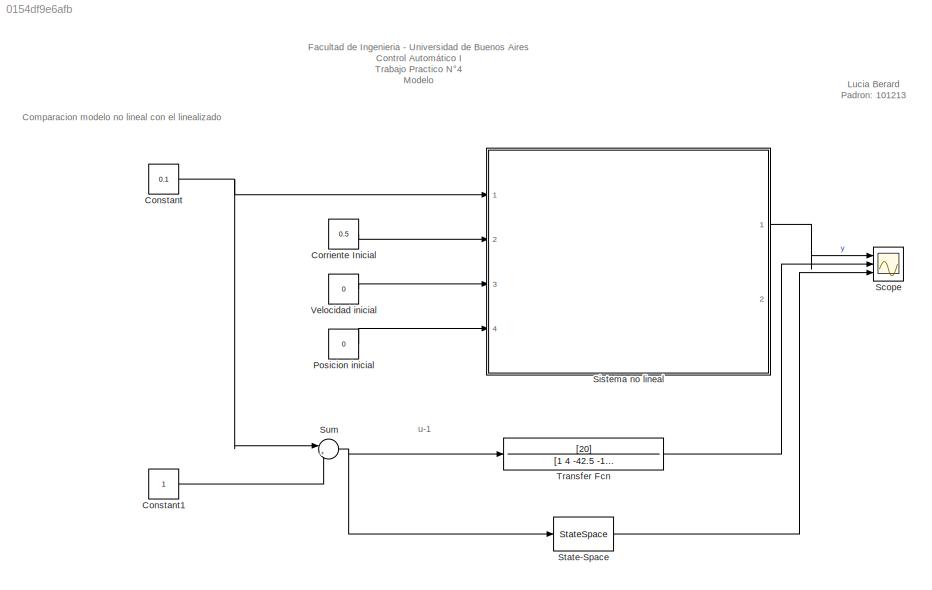
MODEL slx_0154df9e6afb
KIND model
CONFIG AbsTol = auto
CONFIG EnableMultiTasking = on
CONFIG FixedStep = 0.001
CONFIG MaxStep = auto
CONFIG MinStep = auto
CONFIG RelTol = 1e-3
CONFIG SampleTimeConstraint = Unconstrained
CONFIG Solver = ode4
CONFIG SolverName = ode4
CONFIG StartTime = 0.0
CONFIG StopTime = 0.6
BLOCK [Constant] Constant
  Value = 0.1
BLOCK [Constant] Constant1
BLOCK [Constant] Corriente Inicial
  Value = 0.5
BLOCK [Constant] Posicion inicial
  Value = 0
BLOCK [Scope] Scope
  Floating = off
  NumInputPorts = 3
  Ports = [3]
  ScopeSpecificationString = Simulink.scopes.TimeScopeBlockCfg('CurrentConfiguration', extmgr.ConfigurationSet(extmgr.Configuration('Core','General UI',true,'FigureColor',[0.831372549019608 0.815686274509804 0.784313725490196]),extmgr.Configuration('Core','Source UI',true),extmgr.Configuration('Sources','WiredSimulink',true),extmgr.Configuration('Visuals','Time Domain',true,'SerializedDisplays',{struct('MinYLimReal','-1','Max...<+1900ch>
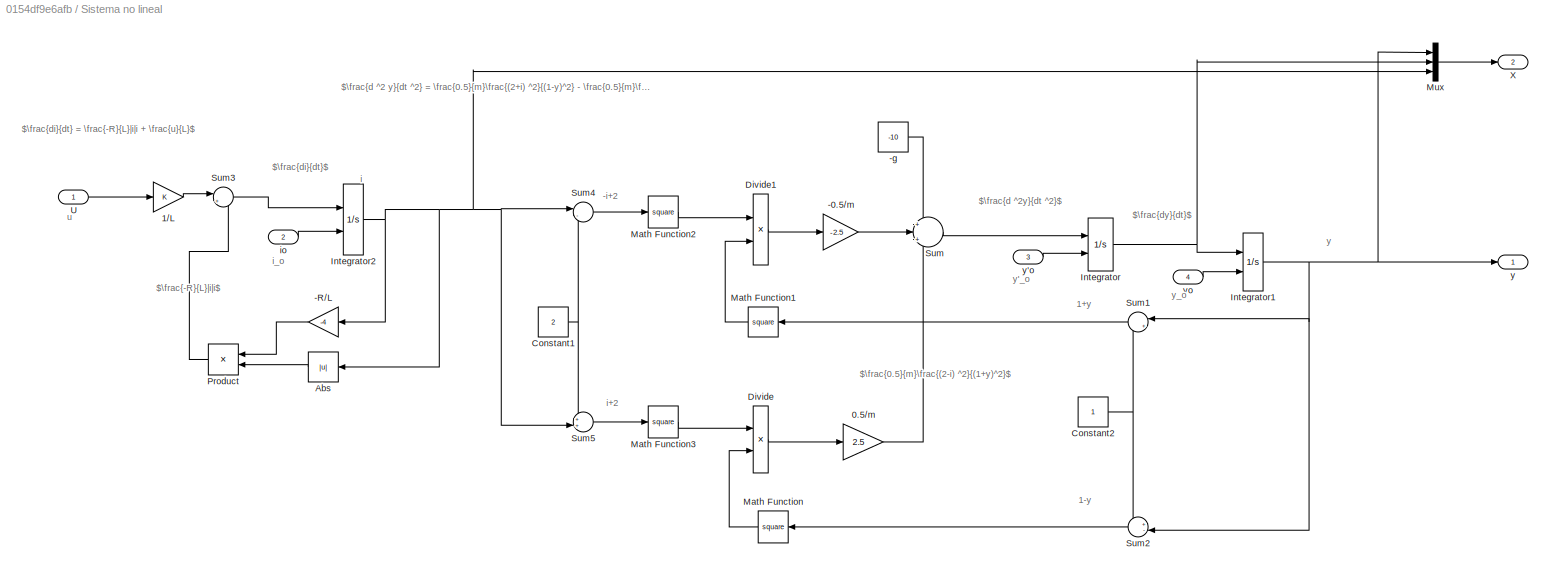
BLOCK [SubSystem] Sistema no lineal
  Ports = [4, 2]
  RequestExecContextInheritance = off
BLOCK [Gain] Sistema no lineal/-0.5//m
  Gain = -2.5
  OutDataTypeStr = Inherit: Inherit via internal rule
  ParamDataTypeStr = Inherit: Inherit via internal rule
  SaturateOnIntegerOverflow = off
BLOCK [Gain] Sistema no lineal/-R//L
  Gain = -4
  OutDataTypeStr = Inherit: Inherit via internal rule
  ParamDataTypeStr = Inherit: Inherit via internal rule
  SaturateOnIntegerOverflow = off
BLOCK [Constant] Sistema no lineal/-g
  Value = -10
BLOCK [Gain] Sistema no lineal/0.5//m
  Gain = 2.5
  OutDataTypeStr = Inherit: Inherit via internal rule
  ParamDataTypeStr = Inherit: Inherit via internal rule
  SaturateOnIntegerOverflow = off
BLOCK [Gain] Sistema no lineal/1//L
  OutDataTypeStr = Inherit: Inherit via internal rule
  ParamDataTypeStr = Inherit: Inherit via internal rule
  SaturateOnIntegerOverflow = off
BLOCK [Abs] Sistema no lineal/Abs
  SaturateOnIntegerOverflow = off
BLOCK [Constant] Sistema no lineal/Constant1
  Value = 2
BLOCK [Constant] Sistema no lineal/Constant2
BLOCK [Product] Sistema no lineal/Divide
  InputSameDT = off
  Inputs = */
  OutDataTypeStr = Inherit: Inherit via internal rule
  Ports = [2, 1]
  RndMeth = Floor
  SaturateOnIntegerOverflow = off
BLOCK [Product] Sistema no lineal/Divide1
  InputSameDT = off
  Inputs = */
  OutDataTypeStr = Inherit: Inherit via internal rule
  Ports = [2, 1]
  RndMeth = Floor
  SaturateOnIntegerOverflow = off
BLOCK [Integrator] Sistema no lineal/Integrator
  InitialConditionSource = external
  Ports = [2, 1]
BLOCK [Integrator] Sistema no lineal/Integrator1
  InitialConditionSource = external
  LowerSaturationLimit = -1
  Ports = [2, 1]
  UpperSaturationLimit = 1
BLOCK [Integrator] Sistema no lineal/Integrator2
  InitialConditionSource = external
  Ports = [2, 1]
BLOCK [Math] Sistema no lineal/Math Function
  Operator = square
  Ports = [1, 1]
BLOCK [Math] Sistema no lineal/Math Function1
  Operator = square
  Ports = [1, 1]
BLOCK [Math] Sistema no lineal/Math Function2
  Operator = square
  Ports = [1, 1]
BLOCK [Math] Sistema no lineal/Math Function3
  Operator = square
  Ports = [1, 1]
BLOCK [Mux] Sistema no lineal/Mux
  DisplayOption = bar
  Inputs = 3
  Ports = [3, 1]
BLOCK [Product] Sistema no lineal/Product
  InputSameDT = off
  OutDataTypeStr = Inherit: Inherit via internal rule
  Ports = [2, 1]
  RndMeth = Floor
  SaturateOnIntegerOverflow = off
BLOCK [Sum] Sistema no lineal/Sum
  IconShape = round
  InputSameDT = off
  Inputs = +|+|+
  OutDataTypeStr = Inherit: Inherit via internal rule
  Ports = [3, 1]
  SaturateOnIntegerOverflow = off
BLOCK [Sum] Sistema no lineal/Sum1
  IconShape = round
  InputSameDT = off
  Inputs = |++
  OutDataTypeStr = Inherit: Inherit via internal rule
  Ports = [2, 1]
  SaturateOnIntegerOverflow = off
BLOCK [Sum] Sistema no lineal/Sum2
  IconShape = round
  InputSameDT = off
  Inputs = +-|
  OutDataTypeStr = Inherit: Inherit via internal rule
  Ports = [2, 1]
  SaturateOnIntegerOverflow = off
BLOCK [Sum] Sistema no lineal/Sum3
  IconShape = round
  InputSameDT = off
  Inputs = |++
  OutDataTypeStr = Inherit: Inherit via internal rule
  Ports = [2, 1]
  SaturateOnIntegerOverflow = off
BLOCK [Sum] Sistema no lineal/Sum4
  IconShape = round
  InputSameDT = off
  Inputs = |-+
  OutDataTypeStr = Inherit: Inherit via internal rule
  Ports = [2, 1]
  SaturateOnIntegerOverflow = off
BLOCK [Sum] Sistema no lineal/Sum5
  IconShape = round
  InputSameDT = off
  Inputs = ++|
  OutDataTypeStr = Inherit: Inherit via internal rule
  Ports = [2, 1]
  SaturateOnIntegerOverflow = off
BLOCK [Inport] Sistema no lineal/U
  IconDisplay = Signal name
  OutDataTypeStr = double
BLOCK [Outport] Sistema no lineal/X
  IconDisplay = Port number
  Port = 2
BLOCK [Inport] Sistema no lineal/io
  IconDisplay = Signal name
  OutDataTypeStr = double
  Port = 2
BLOCK [Outport] Sistema no lineal/y 
  IconDisplay = Port number
BLOCK [Inport] Sistema no lineal/y'o
  IconDisplay = Signal name
  Port = 3
BLOCK [Inport] Sistema no lineal/yo
  IconDisplay = Signal name
  Port = 4
BLOCK [StateSpace] State-Space 
  A = [0 1 0;42.5 0 20;0 0 -4]
  B = [0 0 1]'
  C = [1 0 0]
  D = 0
  InitialCondition = 0
  Ports = [1, 1]
BLOCK [Sum] Sum
  IconShape = round
  InputSameDT = off
  Inputs = |+-
  OutDataTypeStr = Inherit: Inherit via internal rule
  Ports = [2, 1]
  SaturateOnIntegerOverflow = off
BLOCK [TransferFcn] Transfer Fcn
  Denominator = [1 4 -42.5 -170]
  Numerator = [20]
BLOCK [Constant] Velocidad inicial
  Value = 0
ANNOTATION (root): Facultad de Ingenieria - Universidad de Buenos Aires Control Automático I Trabajo Practico N°4 Modelo
ANNOTATION (root): Comparacion modelo no lineal con el linealizado
ANNOTATION (root): Lucia Berard Padron: 101213
ANNOTATION (root): u-1
ANNOTATION Sistema no lineal: -i+2
ANNOTATION Sistema no lineal: 1+y
ANNOTATION Sistema no lineal: 1-y
ANNOTATION Sistema no lineal: $\frac{-R}{L}|i|i$
ANNOTATION Sistema no lineal: $\frac{0.5}{m}\frac{(2-i) ^2}{(1+y)^2}$
ANNOTATION Sistema no lineal: $\frac{d ^2 y}{dt ^2} = \frac{0.5}{m}\frac{(2+i) ^2}{(1-y)^2} - \frac{0.5}{m}\frac{(2-i) ^2}{(1+y)^2} -g$
ANNOTATION Sistema no lineal: $\frac{d ^2y}{dt ^2}$
ANNOTATION Sistema no lineal: $\frac{di}{dt} = \frac{-R}{L}|i|i + \frac{u}{L}$
ANNOTATION Sistema no lineal: $\frac{di}{dt}$
ANNOTATION Sistema no lineal: $\frac{dy}{dt}$
ANNOTATION Sistema no lineal: i
ANNOTATION Sistema no lineal: i+2
ANNOTATION Sistema no lineal: i_o
ANNOTATION Sistema no lineal: u
ANNOTATION Sistema no lineal: y
ANNOTATION Sistema no lineal: y'_o
ANNOTATION Sistema no lineal: y_o
LINE Constant1:1 -> Sum:2
NET Constant:1 -> Sistema no lineal:1, Sum:1
LINE Corriente Inicial:1 -> Sistema no lineal:2
LINE Posicion inicial:1 -> Sistema no lineal:4
LINE Sistema no lineal/-0.5//m:1 -> Sistema no lineal/Sum:2
LINE Sistema no lineal/-R//L:1 -> Sistema no lineal/Product:1
LINE Sistema no lineal/-g:1 -> Sistema no lineal/Sum:1
LINE Sistema no lineal/0.5//m:1 -> Sistema no lineal/Sum:3
LINE Sistema no lineal/1//L:1 -> Sistema no lineal/Sum3:1
LINE Sistema no lineal/Abs:1 -> Sistema no lineal/Product:2
NET Sistema no lineal/Constant1:1 -> Sistema no lineal/Sum4:2, Sistema no lineal/Sum5:1
NET Sistema no lineal/Constant2:1 -> Sistema no lineal/Sum1:2, Sistema no lineal/Sum2:1
LINE Sistema no lineal/Divide1:1 -> Sistema no lineal/-0.5//m:1
LINE Sistema no lineal/Divide:1 -> Sistema no lineal/0.5//m:1
NET Sistema no lineal/Integrator1:1 -> Sistema no lineal/Mux:1, Sistema no lineal/Sum1:1, Sistema no lineal/Sum2:2, Sistema no lineal/y :1
NET Sistema no lineal/Integrator2:1 -> Sistema no lineal/-R//L:1, Sistema no lineal/Abs:1, Sistema no lineal/Mux:3, Sistema no lineal/Sum4:1, Sistema no lineal/Sum5:2
NET Sistema no lineal/Integrator:1 -> Sistema no lineal/Integrator1:1, Sistema no lineal/Mux:2
LINE Sistema no lineal/Math Function1:1 -> Sistema no lineal/Divide1:2
LINE Sistema no lineal/Math Function2:1 -> Sistema no lineal/Divide1:1
LINE Sistema no lineal/Math Function3:1 -> Sistema no lineal/Divide:1
LINE Sistema no lineal/Math Function:1 -> Sistema no lineal/Divide:2
LINE Sistema no lineal/Mux:1 -> Sistema no lineal/X:1
LINE Sistema no lineal/Product:1 -> Sistema no lineal/Sum3:2
LINE Sistema no lineal/Sum1:1 -> Sistema no lineal/Math Function1:1
LINE Sistema no lineal/Sum2:1 -> Sistema no lineal/Math Function:1
LINE Sistema no lineal/Sum3:1 -> Sistema no lineal/Integrator2:1
LINE Sistema no lineal/Sum4:1 -> Sistema no lineal/Math Function2:1
LINE Sistema no lineal/Sum5:1 -> Sistema no lineal/Math Function3:1
LINE Sistema no lineal/Sum:1 -> Sistema no lineal/Integrator:1
LINE Sistema no lineal/U:1 -> Sistema no lineal/1//L:1
LINE Sistema no lineal/io:1 -> Sistema no lineal/Integrator2:2
LINE Sistema no lineal/y'o:1 -> Sistema no lineal/Integrator:2
LINE Sistema no lineal/yo:1 -> Sistema no lineal/Integrator1:2
LINE Sistema no lineal:1 -> Scope:1
LINE State-Space :1 -> Scope:3
NET Sum:1 -> State-Space :1, Transfer Fcn:1
LINE Transfer Fcn:1 -> Scope:2
LINE Velocidad inicial:1 -> Sistema no lineal:3
note: NET lines group one-source signal fan-out (src -> all destinations, sorted); 1:1 wires keep LINE
